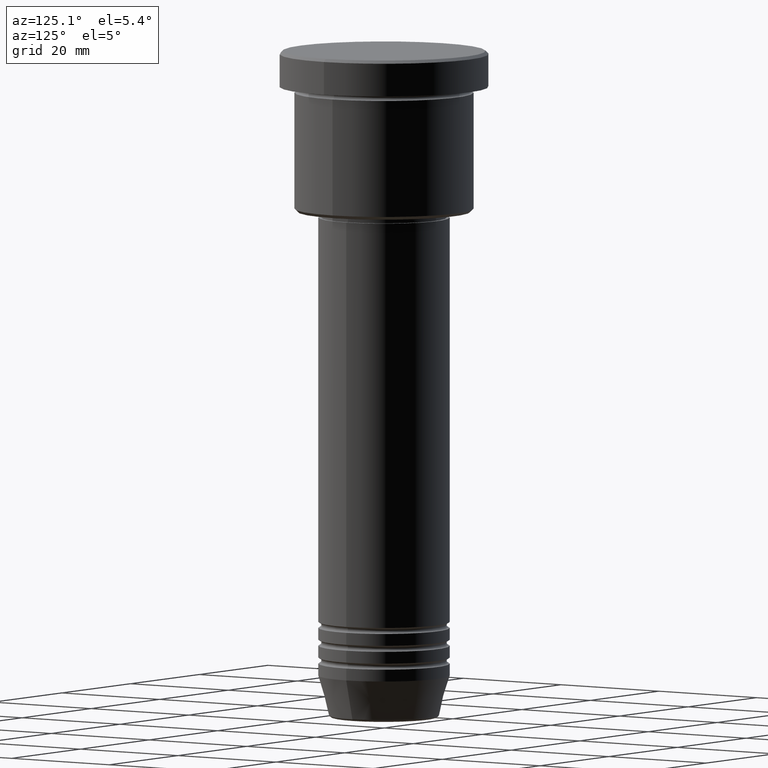
[diagram: clean part render]
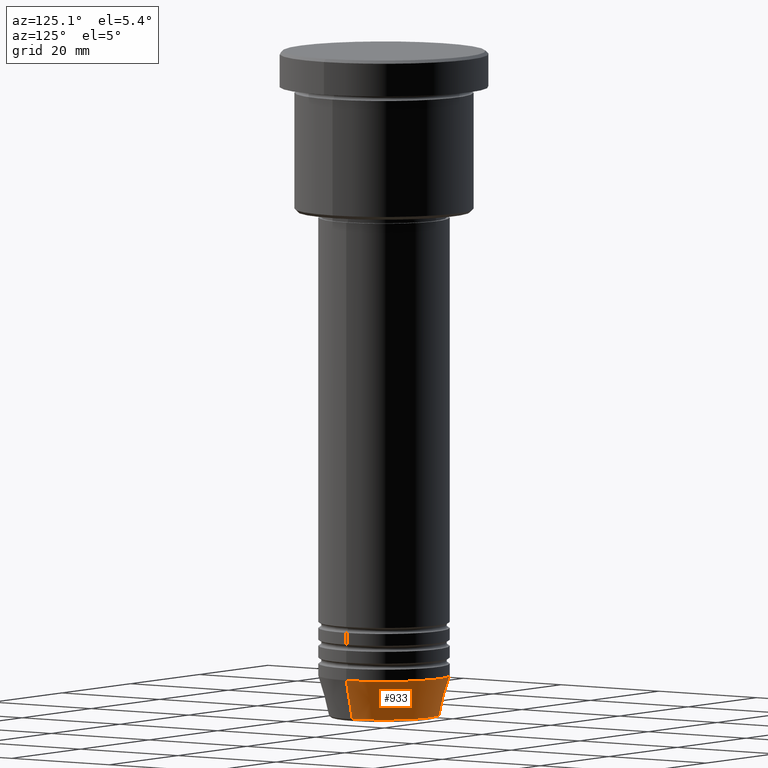
[diagram: same view with one face highlighted and labeled with its STEP entity id]
A machine part, auxiliary view. The second image highlights one B-rep face of the part: STEP entity #933.
In plain terms, the highlighted conical surface has half-angle 15 deg.
Its self-contained STEP definition (entity closure, byte-faithful):
#32 = DIRECTION ( 'NONE',  ( -0.000000000000000000, -0.000000000000000000, 1.000000000000000000 ) ) ;
#44 = ORIENTED_EDGE ( 'NONE', *, *, #875, .T. ) ;
#87 = EDGE_CURVE ( 'NONE', #916, #520, #1161, .T. ) ;
#136 = CARTESIAN_POINT ( 'NONE',  ( -11.00000000000000000, 1.347111479062088405E-15, -105.0000000000000142 ) ) ;
#221 = VERTEX_POINT ( 'NONE', #522 ) ;
#234 = EDGE_CURVE ( 'NONE', #906, #520, #592, .T. ) ;
#290 = CIRCLE ( 'NONE', #323, 9.223655072137191269 ) ;
#323 = AXIS2_PLACEMENT_3D ( 'NONE', #879, #982, #332 ) ;
#332 = DIRECTION ( 'NONE',  ( 1.000000000000000000, 0.000000000000000000, 0.000000000000000000 ) ) ;
#344 = DIRECTION ( 'NONE',  ( 1.000000000000000000, 0.000000000000000000, 0.000000000000000000 ) ) ;
#427 = AXIS2_PLACEMENT_3D ( 'NONE', #962, #602, #344 ) ;
#430 = CARTESIAN_POINT ( 'NONE',  ( -9.223655072137191269, 1.238341722557647202E-15, -111.6294095225512564 ) ) ;
#518 = ORIENTED_EDGE ( 'NONE', *, *, #234, .T. ) ;
#520 = VERTEX_POINT ( 'NONE', #136 ) ;
#522 = CARTESIAN_POINT ( 'NONE',  ( 9.223655072137191269, 0.000000000000000000, -111.6294095225512564 ) ) ;
#532 = CONICAL_SURFACE ( 'NONE', #427, 11.00000000000000000, 0.2617993877991500740 ) ;
#537 = ORIENTED_EDGE ( 'NONE', *, *, #87, .F. ) ;
#592 = LINE ( 'NONE', #772, #974 ) ;
#602 = DIRECTION ( 'NONE',  ( -0.000000000000000000, -0.000000000000000000, 1.000000000000000000 ) ) ;
#644 = AXIS2_PLACEMENT_3D ( 'NONE', #1031, #32, #761 ) ;
#654 = DIRECTION ( 'NONE',  ( 0.2588190451025213501, 0.000000000000000000, 0.9659258262890680902 ) ) ;
#670 = ORIENTED_EDGE ( 'NONE', *, *, #1183, .F. ) ;
#752 = CARTESIAN_POINT ( 'NONE',  ( 11.00000000000000000, 0.000000000000000000, -105.0000000000000142 ) ) ;
#761 = DIRECTION ( 'NONE',  ( 1.000000000000000000, 0.000000000000000000, 0.000000000000000000 ) ) ;
#772 = CARTESIAN_POINT ( 'NONE',  ( -11.00000000000000000, 1.347111479062088405E-15, -105.0000000000000142 ) ) ;
#794 = FACE_OUTER_BOUND ( 'NONE', #868, .T. ) ;
#868 = EDGE_LOOP ( 'NONE', ( #44, #518, #537, #670 ) ) ;
#869 = CARTESIAN_POINT ( 'NONE',  ( 11.00000000000000000, 0.000000000000000000, -105.0000000000000142 ) ) ;
#875 = EDGE_CURVE ( 'NONE', #221, #906, #290, .T. ) ;
#879 = CARTESIAN_POINT ( 'NONE',  ( 0.000000000000000000, 0.000000000000000000, -111.6294095225512564 ) ) ;
#906 = VERTEX_POINT ( 'NONE', #430 ) ;
#916 = VERTEX_POINT ( 'NONE', #869 ) ;
#933 = ADVANCED_FACE ( 'NONE', ( #794 ), #532, .T. ) ;
#962 = CARTESIAN_POINT ( 'NONE',  ( 0.000000000000000000, 0.000000000000000000, -105.0000000000000142 ) ) ;
#974 = VECTOR ( 'NONE', #1139, 1000.000000000000000 ) ;
#982 = DIRECTION ( 'NONE',  ( -0.000000000000000000, -0.000000000000000000, 1.000000000000000000 ) ) ;
#1016 = LINE ( 'NONE', #752, #1025 ) ;
#1025 = VECTOR ( 'NONE', #654, 1000.000000000000000 ) ;
#1031 = CARTESIAN_POINT ( 'NONE',  ( 0.000000000000000000, 0.000000000000000000, -105.0000000000000142 ) ) ;
#1139 = DIRECTION ( 'NONE',  ( -0.2588190451025213501, 3.169619151431772337E-17, 0.9659258262890680902 ) ) ;
#1161 = CIRCLE ( 'NONE', #644, 11.00000000000000000 ) ;
#1183 = EDGE_CURVE ( 'NONE', #221, #916, #1016, .T. ) ;